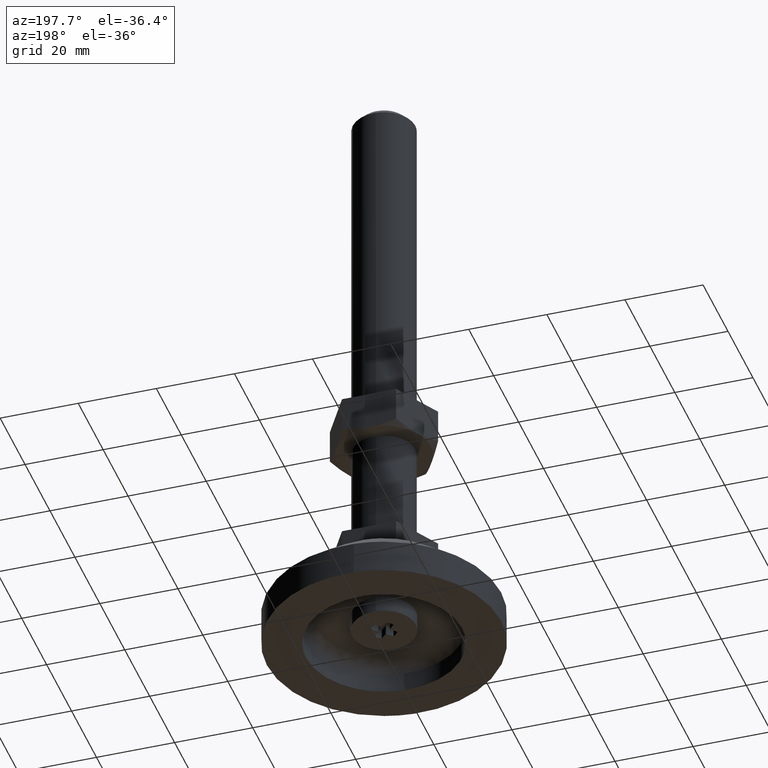
[diagram: clean part render]
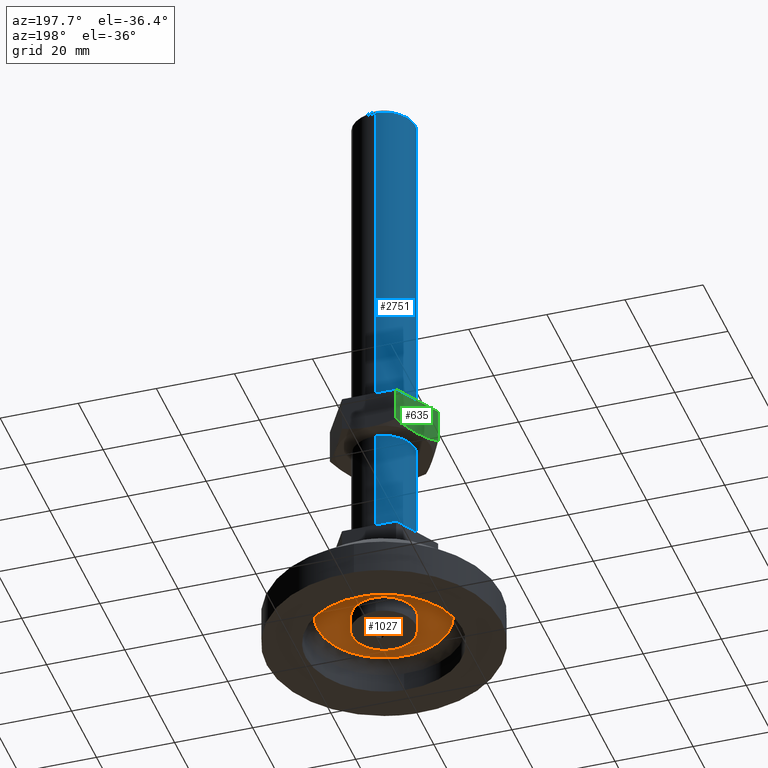
[diagram: same view with three faces highlighted in distinct colors, each labeled with its STEP entity id]
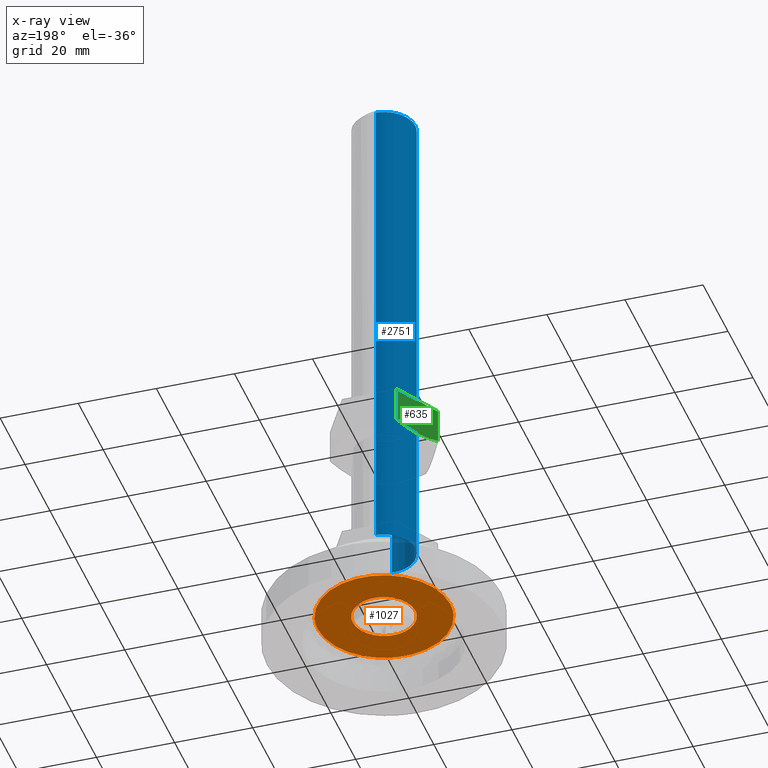
[diagram: x-ray of the same camera — body ghosted, the three highlighted faces saturated]
A machine part, auxiliary view with three faces highlighted in distinct colors.
The next image is the same camera in x-ray (body ghosted, the three faces saturated) — at least one of them is partly hidden behind the body in this view.
Their STEP definitions:

[orange] entity #1027 — the highlighted face is a freeform B-spline surface patch.
#675=CARTESIAN_POINT('',(-0.488376368378550,7.985079118121877,7.999999999999863));
#676=VERTEX_POINT('',#675);
#682=CARTESIAN_POINT('',(8.0,0.0,8.0));
#683=VERTEX_POINT('',#682);
#684=CARTESIAN_POINT('',(-0.488376368378550,7.985079118121877,7.999999999999864));
#685=CARTESIAN_POINT('',(-0.244416152970268,7.999999999991299,8.0));
#686=CARTESIAN_POINT('',(5.238415E-013,7.999999999991434,8.0));
#687=CARTESIAN_POINT('',(8.000000000000254,7.999999999995848,8.0));
#688=CARTESIAN_POINT('',(8.0,0.0,8.0));
#696=(BOUNDED_CURVE()B_SPLINE_CURVE(2,(#684,#685,#686,#687,#688),.UNSPECIFIED.,.F.,.U.)B_SPLINE_CURVE_WITH_KNOTS((3,2,3),(0.239333218813332,0.250000000000000,0.500000000000000),.UNSPECIFIED.)CURVE()GEOMETRIC_REPRESENTATION_ITEM()RATIONAL_B_SPLINE_CURVE((0.976072591555091,0.987503088495432,1.0,0.707106781186548,1.0))REPRESENTATION_ITEM(''));
#697=EDGE_CURVE('',#676,#683,#696,.T.);
#699=CARTESIAN_POINT('',(0.488376368378550,-7.985079118121877,7.999999999999863));
#700=VERTEX_POINT('',#699);
#701=CARTESIAN_POINT('',(8.0,0.0,8.0));
#702=CARTESIAN_POINT('',(7.999999999999730,-7.525659746547362,8.000000000000002));
#703=CARTESIAN_POINT('',(0.488376442733946,-7.985079113574330,8.0));
#711=(BOUNDED_CURVE()B_SPLINE_CURVE(2,(#701,#702,#703),.UNSPECIFIED.,.F.,.U.)B_SPLINE_CURVE_WITH_KNOTS((3,3),(0.500000000000000,0.739333218813332),.UNSPECIFIED.)CURVE()GEOMETRIC_REPRESENTATION_ITEM()RATIONAL_B_SPLINE_CURVE((1.0,0.719603692691116,0.976072591555091))REPRESENTATION_ITEM(''));
#712=EDGE_CURVE('',#683,#700,#711,.T.);
#786=CARTESIAN_POINT('',(-8.0,0.0,8.0));
#787=VERTEX_POINT('',#786);
#788=CARTESIAN_POINT('',(0.488376368378550,-7.985079118121877,7.999999999999864));
#789=CARTESIAN_POINT('',(0.244416152970268,-7.999999999991299,8.0));
#790=CARTESIAN_POINT('',(-5.238415E-013,-7.999999999991434,8.0));
#791=CARTESIAN_POINT('',(-8.000000000000254,-7.999999999995848,8.0));
#792=CARTESIAN_POINT('',(-8.0,0.0,8.0));
#800=(BOUNDED_CURVE()B_SPLINE_CURVE(2,(#788,#789,#790,#791,#792),.UNSPECIFIED.,.F.,.U.)B_SPLINE_CURVE_WITH_KNOTS((3,2,3),(0.739333218813332,0.750000000000000,1.0),.UNSPECIFIED.)CURVE()GEOMETRIC_REPRESENTATION_ITEM()RATIONAL_B_SPLINE_CURVE((0.976072591555091,0.987503088495432,1.0,0.707106781186548,1.0))REPRESENTATION_ITEM(''));
#801=EDGE_CURVE('',#700,#787,#800,.T.);
#803=CARTESIAN_POINT('',(-8.0,0.0,8.0));
#804=CARTESIAN_POINT('',(-7.999999999999730,7.525659746547362,8.000000000000002));
#805=CARTESIAN_POINT('',(-0.488376442733946,7.985079113574330,8.0));
#813=(BOUNDED_CURVE()B_SPLINE_CURVE(2,(#803,#804,#805),.UNSPECIFIED.,.F.,.U.)B_SPLINE_CURVE_WITH_KNOTS((3,3),(0.0,0.239333218813332),.UNSPECIFIED.)CURVE()GEOMETRIC_REPRESENTATION_ITEM()RATIONAL_B_SPLINE_CURVE((1.0,0.719603692691116,0.976072591555091))REPRESENTATION_ITEM(''));
#814=EDGE_CURVE('',#787,#676,#813,.T.);
#898=CARTESIAN_POINT('',(-18.698299935542490,-18.698299934101239,8.0));
#899=CARTESIAN_POINT('',(18.698300847493549,-18.698299934101239,8.0));
#900=CARTESIAN_POINT('',(-18.698299935542490,18.698300846052302,8.0));
#901=CARTESIAN_POINT('',(18.698300847493549,18.698300846052302,8.0));
#902=B_SPLINE_SURFACE_WITH_KNOTS('',1,1,((#898,#900),(#899,#901)),.UNSPECIFIED.,.F.,.F.,.U.,(2,2),(2,2),(0.0,37.396600783036050),(0.0,37.396600780153527),.UNSPECIFIED.);
#903=CARTESIAN_POINT('',(-17.000000001310202,-1.770490E-015,8.0));
#904=VERTEX_POINT('',#903);
#905=CARTESIAN_POINT('',(17.000000001310202,8.852452E-016,8.0));
#906=VERTEX_POINT('',#905);
#907=CARTESIAN_POINT('',(-17.000000001310202,-1.770490E-015,8.0));
#908=CARTESIAN_POINT('',(-16.999990740072480,0.243351636035848,7.999999999999993));
#909=CARTESIAN_POINT('',(-16.994109427680609,0.521479265818539,8.000000000000023));
#910=CARTESIAN_POINT('',(-16.979274691691959,0.834021971154410,7.999999999999996));
#911=CARTESIAN_POINT('',(-16.972524882542839,0.972941120883318,8.000000000000002));
#912=CARTESIAN_POINT('',(-16.902128357061830,2.118239549209934,7.999999999999996));
#913=CARTESIAN_POINT('',(-16.585810052330181,4.083272487268869,8.000000000000002));
#914=CARTESIAN_POINT('',(-15.562835700632990,7.087358700549127,8.000000000000002));
#915=CARTESIAN_POINT('',(-14.097164971622670,9.674558884546849,7.999999999999985));
#916=CARTESIAN_POINT('',(-12.121700376499440,12.022125558791529,8.000000000000021));
#917=CARTESIAN_POINT('',(-10.113357943719340,13.754561247172530,8.000000000000052));
#918=CARTESIAN_POINT('',(-7.976185239331749,15.071368296150450,7.999999999999885));
#919=CARTESIAN_POINT('',(-5.937956145267705,15.974828623490991,8.000000000000043));
#920=CARTESIAN_POINT('',(-3.804471400465776,16.622000414830762,8.000000000000004));
#921=CARTESIAN_POINT('',(-2.289936479352892,16.865776945063612,7.999999999999996));
#922=CARTESIAN_POINT('',(-1.423870766038679,16.940299133382620,8.0));
#923=CARTESIAN_POINT('',(-1.354510352707836,16.945440938782660,8.000000000000002));
#924=CARTESIAN_POINT('',(-1.250563555704012,16.954363471836110,8.0));
#925=CARTESIAN_POINT('',(-1.146433376782712,16.960765098974630,8.0));
#926=CARTESIAN_POINT('',(-1.042392178843003,16.968435624559721,8.0));
#927=CARTESIAN_POINT('',(-0.938196906636972,16.973575297939739,7.999999999999977));
#928=CARTESIAN_POINT('',(-0.799381728042289,16.981937834955410,8.000000000000132));
#929=CARTESIAN_POINT('',(-0.660394868040127,16.986857459909480,7.999999999999591));
#930=CARTESIAN_POINT('',(-0.486673739968640,16.993436581499921,8.000000000001030));
#931=CARTESIAN_POINT('',(-0.173866523623167,17.000934048894450,7.999999999997131));
#932=CARTESIAN_POINT('',(0.173857868693626,17.000904863510961,8.000000000001469));
#933=CARTESIAN_POINT('',(0.486666033581053,16.993481716076658,7.999999999999725));
#934=CARTESIAN_POINT('',(0.625659753848847,16.988047049749969,7.999999999999985));
#935=CARTESIAN_POINT('',(0.729897013545028,16.984499799007359,8.0));
#936=CARTESIAN_POINT('',(1.841372196367757,16.933368520707329,7.999999999999993));
#937=CARTESIAN_POINT('',(4.019287487661920,16.623816205484140,8.000000000000037));
#938=CARTESIAN_POINT('',(7.124935163453744,15.555584605455699,7.999999999999923));
#939=CARTESIAN_POINT('',(9.781220517496346,14.007306670483940,8.000000000000151));
#940=CARTESIAN_POINT('',(12.022124837564750,12.121718032278720,7.999999999999941));
#941=CARTESIAN_POINT('',(13.754550805423071,10.113358935997370,8.000000000000018));
#942=CARTESIAN_POINT('',(15.071369502962041,7.976192515965723,7.999999999999998));
#943=CARTESIAN_POINT('',(15.974825807441899,5.937962906358010,8.0));
#944=CARTESIAN_POINT('',(16.621997529090290,3.804482110759535,8.0));
#945=CARTESIAN_POINT('',(16.865774301175289,2.289953592617573,8.0));
#946=CARTESIAN_POINT('',(16.940297880409080,1.423886292867204,8.0));
#947=CARTESIAN_POINT('',(16.945439797891389,1.354524332498651,8.0));
#948=CARTESIAN_POINT('',(16.954362625325398,1.250575294308439,8.0));
#949=CARTESIAN_POINT('',(16.960764429763731,1.146442993294152,8.0));
#950=CARTESIAN_POINT('',(16.968435163071220,1.042399949181519,8.0));
#951=CARTESIAN_POINT('',(16.973557910521489,0.938202322502540,8.0));
#952=CARTESIAN_POINT('',(16.982014873243539,0.799390042228485,8.0));
#953=CARTESIAN_POINT('',(16.986686649659148,0.660394510026154,8.0));
#954=CARTESIAN_POINT('',(16.992395094721779,0.521440301371893,8.0));
#955=CARTESIAN_POINT('',(16.994348062283059,0.417126027568580,8.0));
#956=CARTESIAN_POINT('',(16.997527868525012,0.312846068062181,8.000000000002187));
#957=CARTESIAN_POINT('',(16.998536201070639,0.173783848772689,7.999999999991048));
#958=CARTESIAN_POINT('',(17.000455652721492,0.069517438962805,8.000000000014646));
#959=CARTESIAN_POINT('',(17.000000001310202,8.852452E-016,8.0));
#960=B_SPLINE_CURVE_WITH_KNOTS('',3,(#907,#908,#909,#910,#911,#912,#913,#914,#915,#916,#917,#918,#919,#920,#921,#922,#923,#924,#925,#926,#927,#928,#929,#930,#931,#932,#933,#934,#935,#936,#937,#938,#939,#940,#941,#942,#943,#944,#945,#946,#947,#948,#949,#950,#951,#952,#953,#954,#955,#956,#957,#958,#959),.UNSPECIFIED.,.F.,.U.,(4,1,1,1,1,1,1,1,1,1,1,1,1,2,1,1,1,1,1,1,1,1,1,1,1,1,1,1,1,1,1,1,1,1,1,1,2,1,1,1,1,1,1,1,1,1,1,1,4),(0.000279951280106,0.730340490100964,0.834653479736623,0.938966469372204,1.147590618041953,4.276958051489416,6.884755618008576,10.639983389299850,13.143443777263000,16.064173933178349,18.567656764119409,20.653882622130570,22.740063612842079,25.243527272354580,25.347853322825902,25.452179373297220,25.556501023896860,25.660822674496501,25.765139095591909,25.869455516687331,26.078008212484640,26.182340828358200,26.390993732402631,27.016687967272329,27.225333309421739,27.329660470256410,27.433987631091082,27.538230327116381,30.667569822432011,34.005557793714118,37.343519165231427,39.847002032771627,42.767728159300063,45.271205691879651,47.357446939471593,49.443605165089302,51.947071032444292,52.051399469802092,52.155727907159878,52.260051557390447,52.364375207621038,52.468693198140180,52.573011188659287,52.781562555425587,52.885893776881751,52.990221436159693,53.094549095437628,53.198868951159639,53.407403239207810),.UNSPECIFIED.);
#961=EDGE_CURVE('',#904,#906,#960,.T.);
#962=ORIENTED_EDGE('',*,*,#961,.T.);
#963=CARTESIAN_POINT('',(17.000000001310202,8.852452E-016,8.0));
#964=CARTESIAN_POINT('',(16.999990726066422,-0.243351634027902,7.999999999999984));
#965=CARTESIAN_POINT('',(16.994109557719860,-0.521479284461525,8.000000000000016));
#966=CARTESIAN_POINT('',(16.979274087444281,-0.834021884526854,7.999999999999996));
#967=CARTESIAN_POINT('',(16.972526854321270,-0.972940298078781,8.000000000000004));
#968=CARTESIAN_POINT('',(16.906387477573411,-2.048834582715363,7.999999999999976));
#969=CARTESIAN_POINT('',(16.634291085696351,-3.807755221272601,8.000000000000044));
#970=CARTESIAN_POINT('',(15.790304769539960,-6.500901115124251,7.999999999999956));
#971=CARTESIAN_POINT('',(14.675030592968980,-8.716648997677385,8.000000000000044));
#972=CARTESIAN_POINT('',(13.178183482078159,-10.814315337869621,7.999999999999965));
#973=CARTESIAN_POINT('',(11.517224836704740,-12.602457005961460,8.000000000000037));
#974=CARTESIAN_POINT('',(9.646354755252718,-14.062439656521590,8.000000000000085));
#975=CARTESIAN_POINT('',(7.601087583899797,-15.254394865863690,7.999999999999797));
#976=CARTESIAN_POINT('',(5.037567759148679,-16.353434392681152,8.000000000000192));
#977=CARTESIAN_POINT('',(2.844259514579093,-16.818354704853220,7.999999999999925));
#978=CARTESIAN_POINT('',(1.423859678848937,-16.940244035530640,8.000000000000016));
#979=CARTESIAN_POINT('',(1.354510352707804,-16.945440938782660,8.0));
#980=CARTESIAN_POINT('',(1.250563555704026,-16.954363471836121,8.0));
#981=CARTESIAN_POINT('',(1.146433376782785,-16.960765098974630,8.0));
#982=CARTESIAN_POINT('',(1.042392178842954,-16.968435624559739,8.0));
#983=CARTESIAN_POINT('',(0.938196906636968,-16.973575297939728,7.999999999999977));
#984=CARTESIAN_POINT('',(0.799381728042224,-16.981937834955410,8.000000000000132));
#985=CARTESIAN_POINT('',(0.660394868040057,-16.986857459909491,7.999999999999590));
#986=CARTESIAN_POINT('',(0.486673739968785,-16.993436581499910,8.000000000001032));
#987=CARTESIAN_POINT('',(0.173866523315945,-17.000934048109482,7.999999999997131));
#988=CARTESIAN_POINT('',(-0.173857866697249,-17.000904868612562,8.000000000001469));
#989=CARTESIAN_POINT('',(-0.486666038033830,-16.993481704698048,7.999999999999724));
#990=CARTESIAN_POINT('',(-0.625659735886218,-16.988047095650590,7.999999999999984));
#991=CARTESIAN_POINT('',(-0.729897283045404,-16.984500144848141,7.999999999999999));
#992=CARTESIAN_POINT('',(-1.841373081641815,-16.933370802258811,8.0));
#993=CARTESIAN_POINT('',(-4.019283594157134,-16.623811218740610,7.999999999999991));
#994=CARTESIAN_POINT('',(-7.124943935258409,-15.555593107908450,8.000000000000005));
#995=CARTESIAN_POINT('',(-9.720834680498516,-14.042479501188520,7.999999999999977));
#996=CARTESIAN_POINT('',(-11.918705849519711,-12.216048077699559,8.000000000000204));
#997=CARTESIAN_POINT('',(-13.536921872206159,-10.385958090731570,7.999999999999767));
#998=CARTESIAN_POINT('',(-14.866672305844460,-8.341891935874092,8.000000000000160));
#999=CARTESIAN_POINT('',(-15.802447736480691,-6.394372501991396,7.999999999999937));
#1000=CARTESIAN_POINT('',(-16.545492408103520,-4.145095186513487,8.000000000000007));
#1001=CARTESIAN_POINT('',(-16.841931403301171,-2.497286984640664,8.000000000000004));
#1002=CARTESIAN_POINT('',(-16.934699602303400,-1.493198661933933,8.0));
#1003=CARTESIAN_POINT('',(-16.945476126418850,-1.354527286972497,8.0));
#1004=CARTESIAN_POINT('',(-16.954362625325409,-1.250575294308425,8.0));
#1005=CARTESIAN_POINT('',(-16.960764429763721,-1.146442993294168,8.0));
#1006=CARTESIAN_POINT('',(-16.968397125762909,-1.042397349860229,8.0));
#1007=CARTESIAN_POINT('',(-16.975518809366161,-0.903518396649632,8.0));
#1008=CARTESIAN_POINT('',(-16.983586554762741,-0.764683583954873,8.0));
#1009=CARTESIAN_POINT('',(-16.987956702939709,-0.625678777514760,8.0));
#1010=CARTESIAN_POINT('',(-16.992424529565490,-0.521440807518652,8.0));
#1011=CARTESIAN_POINT('',(-16.994348062283049,-0.417126027568588,8.0));
#1012=CARTESIAN_POINT('',(-16.997527868525019,-0.312846068062191,8.000000000002187));
#1013=CARTESIAN_POINT('',(-16.998536201070628,-0.173783848772684,7.999999999991045));
#1014=CARTESIAN_POINT('',(-17.000455652721492,-0.069517438962819,8.000000000014646));
#1015=CARTESIAN_POINT('',(-17.000000001310202,-1.770490E-015,8.0));
#1016=B_SPLINE_CURVE_WITH_KNOTS('',3,(#963,#964,#965,#966,#967,#968,#969,#970,#971,#972,#973,#974,#975,#976,#977,#978,#979,#980,#981,#982,#983,#984,#985,#986,#987,#988,#989,#990,#991,#992,#993,#994,#995,#996,#997,#998,#999,#1000,#1001,#1002,#1003,#1004,#1005,#1006,#1007,#1008,#1009,#1010,#1011,#1012,#1013,#1014,#1015),.UNSPECIFIED.,.F.,.U.,(4,1,1,1,1,1,1,1,1,1,1,1,1,2,1,1,1,1,1,1,1,1,1,1,1,1,1,1,1,1,1,1,1,1,1,1,1,1,1,1,1,1,1,1,1,1,1,1,1,4),(0.000279951277427,0.730340490098229,0.834653479733831,0.938966469369483,1.147590618039196,4.068335031731877,6.258884130867990,9.596867817257589,11.474469294449660,13.977936336100131,16.898668777599990,18.567656764116560,21.071122136319079,25.243527272352580,25.347853322823941,25.452179373295269,25.556501023894882,25.660822674494540,25.765139095589952,25.869455516685420,26.078008212482739,26.182340828356349,26.390993732400759,27.016687967270560,27.225333309420002,27.329660470254652,27.433987631089330,27.538230327114601,30.667569822430661,34.005557793713180,37.343519165230717,39.638378357464291,42.559105273994817,44.645334930066973,46.940199511905512,49.026392998397107,51.738454000212677,51.947071032444271,52.051399469802043,52.155727907159829,52.260051557390433,52.364375207621002,52.468693198140130,52.677231333969388,52.781562555425538,52.885893776881687,52.990221436159644,53.094549095437571,53.198868951159582,53.407403239207760),.UNSPECIFIED.);
#1017=EDGE_CURVE('',#906,#904,#1016,.T.);
#1018=ORIENTED_EDGE('',*,*,#1017,.T.);
#1019=EDGE_LOOP('',(#962,#1018));
#1020=FACE_OUTER_BOUND('',#1019,.T.);
#1021=ORIENTED_EDGE('',*,*,#712,.F.);
#1022=ORIENTED_EDGE('',*,*,#697,.F.);
#1023=ORIENTED_EDGE('',*,*,#814,.F.);
#1024=ORIENTED_EDGE('',*,*,#801,.F.);
#1025=EDGE_LOOP('',(#1021,#1022,#1023,#1024));
#1026=FACE_BOUND('',#1025,.T.);
#1027=ADVANCED_FACE('',(#1020,#1026),#902,.F.);

[blue] entity #2751 — the highlighted face is a freeform B-spline surface patch.
#2566=CARTESIAN_POINT('',(-0.069812285799264,-7.999695384737674,154.999999999755600));
#2567=VERTEX_POINT('',#2566);
#2568=CARTESIAN_POINT('',(-8.0,0.0,155.0));
#2569=VERTEX_POINT('',#2568);
#2570=CARTESIAN_POINT('',(-0.069812285799264,-7.999695384737674,154.999999999755600));
#2571=CARTESIAN_POINT('',(-8.000000000001338,-7.930489683086028,154.999999999877820));
#2572=CARTESIAN_POINT('',(-8.0,0.0,155.0));
#2580=(BOUNDED_CURVE()B_SPLINE_CURVE(2,(#2570,#2571,#2572),.UNSPECIFIED.,.F.,.U.)B_SPLINE_CURVE_WITH_KNOTS((3,3),(0.251539894374832,0.500000000000000),.UNSPECIFIED.)CURVE()GEOMETRIC_REPRESENTATION_ITEM()RATIONAL_B_SPLINE_CURVE((0.996414028008194,0.708910879666856,1.0))REPRESENTATION_ITEM(''));
#2581=EDGE_CURVE('',#2567,#2569,#2580,.T.);
#2597=CARTESIAN_POINT('',(-0.488376442733946,7.985079113574330,155.0));
#2598=VERTEX_POINT('',#2597);
#2606=CARTESIAN_POINT('',(-8.0,0.0,155.0));
#2607=CARTESIAN_POINT('',(-7.999999999999730,7.525659746547362,154.999999999999940));
#2608=CARTESIAN_POINT('',(-0.488376442733946,7.985079113574330,155.0));
#2616=(BOUNDED_CURVE()B_SPLINE_CURVE(2,(#2606,#2607,#2608),.UNSPECIFIED.,.F.,.U.)B_SPLINE_CURVE_WITH_KNOTS((3,3),(0.500000000000000,0.739333218813332),.UNSPECIFIED.)CURVE()GEOMETRIC_REPRESENTATION_ITEM()RATIONAL_B_SPLINE_CURVE((1.0,0.719603692691116,0.976072591555091))REPRESENTATION_ITEM(''));
#2617=EDGE_CURVE('',#2569,#2598,#2616,.T.);
#2640=CARTESIAN_POINT('',(0.488376442733946,-7.985079113574330,155.0));
#2641=VERTEX_POINT('',#2640);
#2642=CARTESIAN_POINT('',(0.488376442733946,-7.985079113574330,155.0));
#2643=CARTESIAN_POINT('',(0.302570733332212,-7.996444226976010,154.999999999918600));
#2644=CARTESIAN_POINT('',(0.116336459679876,-8.001320729692404,154.999999999837090));
#2645=CARTESIAN_POINT('',(-0.069812285799264,-7.999695384737674,154.999999999755600));
#2646=B_SPLINE_CURVE_WITH_KNOTS('',3,(#2642,#2643,#2644,#2645),.UNSPECIFIED.,.F.,.U.,(4,4),(0.000000019240903,0.558500553722256),.UNSPECIFIED.);
#2647=EDGE_CURVE('',#2641,#2567,#2646,.T.);
#2684=CARTESIAN_POINT('',(0.488388316278856,-7.985078387374934,158.200000000000100));
#2685=CARTESIAN_POINT('',(-7.496690071096078,-8.473466703653790,158.200000000000100));
#2686=CARTESIAN_POINT('',(-7.985078387374934,-0.488388316278856,158.200000000000100));
#2687=CARTESIAN_POINT('',(-8.473466703653790,7.496690071096078,158.200000000000100));
#2688=CARTESIAN_POINT('',(-0.488388316278856,7.985078387374934,158.200000000000100));
#2689=CARTESIAN_POINT('',(0.488388316278856,-7.985078387374934,23.719999999999999));
#2690=CARTESIAN_POINT('',(-7.496690071096078,-8.473466703653790,23.720000000000002));
#2691=CARTESIAN_POINT('',(-7.985078387374934,-0.488388316278856,23.719999999999999));
#2692=CARTESIAN_POINT('',(-8.473466703653790,7.496690071096078,23.720000000000002));
#2693=CARTESIAN_POINT('',(-0.488388316278856,7.985078387374934,23.719999999999999));
#2701=(BOUNDED_SURFACE()B_SPLINE_SURFACE(2,1,((#2684,#2689),(#2685,#2690),(#2686,#2691),(#2687,#2692),(#2688,#2693)),.UNSPECIFIED.,.F.,.F.,.U.)B_SPLINE_SURFACE_WITH_KNOTS((3,2,3),(2,2),(0.0,13.254833995939039,26.509667991878072),(0.0,134.480000000000100),.UNSPECIFIED.)GEOMETRIC_REPRESENTATION_ITEM()RATIONAL_B_SPLINE_SURFACE(((1.0,1.0),(0.707106781186548,0.707106781186548),(1.0,1.0),(0.707106781186548,0.707106781186548),(1.0,1.0)))REPRESENTATION_ITEM('')SURFACE());
#2702=CARTESIAN_POINT('',(0.488376294023153,-7.985079122669426,26.999999999999989));
#2703=VERTEX_POINT('',#2702);
#2704=CARTESIAN_POINT('',(-8.0,0.0,27.0));
#2705=VERTEX_POINT('',#2704);
#2706=CARTESIAN_POINT('',(0.488376294023153,-7.985079122669426,26.999999999999993));
#2707=CARTESIAN_POINT('',(0.244416078406390,-7.999999999991079,26.999999999999996));
#2708=CARTESIAN_POINT('',(-5.376850E-013,-7.999999999991218,26.999999999999989));
#2709=CARTESIAN_POINT('',(-8.000000000000259,-7.999999999995745,26.999999999999996));
#2710=CARTESIAN_POINT('',(-8.0,0.0,27.0));
#2718=(BOUNDED_CURVE()B_SPLINE_CURVE(2,(#2706,#2707,#2708,#2709,#2710),.UNSPECIFIED.,.F.,.U.)B_SPLINE_CURVE_WITH_KNOTS((3,2,3),(0.239333222026773,0.250000000000000,0.500000000000000),.UNSPECIFIED.)CURVE()GEOMETRIC_REPRESENTATION_ITEM()RATIONAL_B_SPLINE_CURVE((0.976072598442123,0.987503092260212,1.0,0.707106781186548,1.0))REPRESENTATION_ITEM(''));
#2719=EDGE_CURVE('',#2703,#2705,#2718,.T.);
#2720=ORIENTED_EDGE('',*,*,#2719,.F.);
#2721=CARTESIAN_POINT('',(0.488376442733946,-7.985079113574330,155.0));
#2722=CARTESIAN_POINT('',(0.488376294023153,-7.985079122669426,26.999999999999989));
#2723=QUASI_UNIFORM_CURVE('',1,(#2721,#2722),.UNSPECIFIED.,.F.,.U.);
#2724=EDGE_CURVE('',#2641,#2703,#2723,.T.);
#2725=ORIENTED_EDGE('',*,*,#2724,.F.);
#2726=ORIENTED_EDGE('',*,*,#2647,.T.);
#2727=ORIENTED_EDGE('',*,*,#2581,.T.);
#2728=ORIENTED_EDGE('',*,*,#2617,.T.);
#2729=CARTESIAN_POINT('',(-0.488376294023154,7.985079122669426,26.999999999999989));
#2730=VERTEX_POINT('',#2729);
#2731=CARTESIAN_POINT('',(-0.488376442733946,7.985079113574330,155.0));
#2732=CARTESIAN_POINT('',(-0.488376294023154,7.985079122669426,26.999999999999989));
#2733=QUASI_UNIFORM_CURVE('',1,(#2731,#2732),.UNSPECIFIED.,.F.,.U.);
#2734=EDGE_CURVE('',#2598,#2730,#2733,.T.);
#2735=ORIENTED_EDGE('',*,*,#2734,.T.);
#2736=CARTESIAN_POINT('',(-8.0,0.0,27.0));
#2737=CARTESIAN_POINT('',(-7.999999999999724,7.525659886963888,27.0));
#2738=CARTESIAN_POINT('',(-0.488376294023154,7.985079122669426,26.999999999999993));
#2746=(BOUNDED_CURVE()B_SPLINE_CURVE(2,(#2736,#2737,#2738),.UNSPECIFIED.,.F.,.U.)B_SPLINE_CURVE_WITH_KNOTS((3,3),(0.500000000000000,0.739333222026773),.UNSPECIFIED.)CURVE()GEOMETRIC_REPRESENTATION_ITEM()RATIONAL_B_SPLINE_CURVE((1.0,0.719603688926335,0.976072598442123))REPRESENTATION_ITEM(''));
#2747=EDGE_CURVE('',#2705,#2730,#2746,.T.);
#2748=ORIENTED_EDGE('',*,*,#2747,.F.);
#2749=EDGE_LOOP('',(#2720,#2725,#2726,#2727,#2728,#2735,#2748));
#2750=FACE_OUTER_BOUND('',#2749,.T.);
#2751=ADVANCED_FACE('',(#2750),#2701,.T.);

[green] entity #635 — the highlighted face is a freeform B-spline surface patch.
#216=CARTESIAN_POINT('',(-13.850000000000000,1.738792E-015,58.071796703249603));
#217=VERTEX_POINT('',#216);
#237=CARTESIAN_POINT('',(-10.332761280345141,6.092036745720588,57.000784531429623));
#238=VERTEX_POINT('',#237);
#239=CARTESIAN_POINT('',(-10.332761280345141,6.092036745720588,57.000784531429623));
#240=CARTESIAN_POINT('',(-10.348248742629220,6.065211671645300,57.000620761392319));
#241=CARTESIAN_POINT('',(-10.363741200486510,6.038377944982044,57.000526430155958));
#242=CARTESIAN_POINT('',(-10.526498720988601,5.756473623675232,57.000267547938769));
#243=CARTESIAN_POINT('',(-10.674505143074970,5.500118956641597,57.006343869094188));
#244=CARTESIAN_POINT('',(-10.969168994463089,4.989746146736409,57.030921325750157));
#245=CARTESIAN_POINT('',(-11.115989092810871,4.735446252786063,57.049394064813839));
#246=CARTESIAN_POINT('',(-11.554980302966960,3.975091100697316,57.122562089201182));
#247=CARTESIAN_POINT('',(-11.845678887180490,3.471586335265849,57.195048777272227));
#248=CARTESIAN_POINT('',(-12.712599404911410,1.970035809117622,57.475037169589250));
#249=CARTESIAN_POINT('',(-13.283666257645731,0.980918910574566,57.744823695343023));
#250=CARTESIAN_POINT('',(-13.850000000000000,1.738792E-015,58.071796703249603));
#251=B_SPLINE_CURVE_WITH_KNOTS('',3,(#239,#240,#241,#242,#243,#244,#245,#246,#247,#248,#249,#250),.UNSPECIFIED.,.F.,.U.,(4,2,2,2,2,4),(0.493422575026340,0.500000000000001,0.562500000000001,0.625000000000001,0.750000000000001,1.0),.UNSPECIFIED.);
#252=EDGE_CURVE('',#238,#217,#251,.T.);
#282=CARTESIAN_POINT('',(-6.921797000000001,12.0,58.073646796981201));
#283=VERTEX_POINT('',#282);
#284=CARTESIAN_POINT('',(-6.921797000000001,12.0,58.073646796981201));
#285=CARTESIAN_POINT('',(-7.487395772383670,11.020354220992679,57.746871651787913));
#286=CARTESIAN_POINT('',(-8.057123296092586,10.033557234638939,57.477486419747571));
#287=CARTESIAN_POINT('',(-8.920641063569148,8.537900634298062,57.197487253449196));
#288=CARTESIAN_POINT('',(-9.209971671413745,8.036765336614549,57.124884088511877));
#289=CARTESIAN_POINT('',(-9.776695725459920,7.055170510684600,57.029190962180976));
#290=CARTESIAN_POINT('',(-10.053918824481450,6.575006032420469,57.003733163855799));
#291=CARTESIAN_POINT('',(-10.332761280345141,6.092036745720588,57.000784531429623));
#292=B_SPLINE_CURVE_WITH_KNOTS('',3,(#284,#285,#286,#287,#288,#289,#290,#291),.UNSPECIFIED.,.F.,.U.,(4,2,2,4),(0.0,0.250000000000000,0.375000000000001,0.493422575026340),.UNSPECIFIED.);
#293=EDGE_CURVE('',#283,#238,#292,.T.);
#487=CARTESIAN_POINT('',(-13.850000000000000,0.0,67.0));
#488=VERTEX_POINT('',#487);
#489=CARTESIAN_POINT('',(-6.921797000000001,12.0,67.0));
#490=VERTEX_POINT('',#489);
#491=CARTESIAN_POINT('',(-13.850000000000000,0.0,67.0));
#492=CARTESIAN_POINT('',(-6.921797000000001,12.0,67.0));
#493=QUASI_UNIFORM_CURVE('',1,(#491,#492),.UNSPECIFIED.,.F.,.U.);
#494=EDGE_CURVE('',#488,#490,#493,.T.);
#543=CARTESIAN_POINT('',(-13.850000000000000,0.0,67.0));
#544=CARTESIAN_POINT('',(-13.850000000000000,1.738792E-015,58.071796703249603));
#545=QUASI_UNIFORM_CURVE('',1,(#543,#544),.UNSPECIFIED.,.F.,.U.);
#546=EDGE_CURVE('',#488,#217,#545,.T.);
#614=CARTESIAN_POINT('',(-6.921797000000001,12.0,67.0));
#615=CARTESIAN_POINT('',(-6.921797000000001,12.0,58.073646796981201));
#616=QUASI_UNIFORM_CURVE('',1,(#614,#615),.UNSPECIFIED.,.F.,.U.);
#617=EDGE_CURVE('',#490,#283,#616,.T.);
#623=CARTESIAN_POINT('',(-6.575733273578202,12.599399976741671,56.501323718863702));
#624=CARTESIAN_POINT('',(-14.196063912250681,-0.599400298606752,56.501323718863702));
#625=CARTESIAN_POINT('',(-6.575733273578202,12.599399976741671,67.499461062399490));
#626=CARTESIAN_POINT('',(-14.196063912250681,-0.599400298606752,67.499461062399490));
#627=B_SPLINE_SURFACE_WITH_KNOTS('',1,1,((#623,#625),(#624,#626)),.UNSPECIFIED.,.F.,.F.,.U.,(2,2),(2,2),(0.0,15.240661657265020),(0.0,10.998137343535801),.UNSPECIFIED.);
#628=ORIENTED_EDGE('',*,*,#617,.T.);
#629=ORIENTED_EDGE('',*,*,#293,.T.);
#630=ORIENTED_EDGE('',*,*,#252,.T.);
#631=ORIENTED_EDGE('',*,*,#546,.F.);
#632=ORIENTED_EDGE('',*,*,#494,.T.);
#633=EDGE_LOOP('',(#628,#629,#630,#631,#632));
#634=FACE_OUTER_BOUND('',#633,.T.);
#635=ADVANCED_FACE('',(#634),#627,.T.);